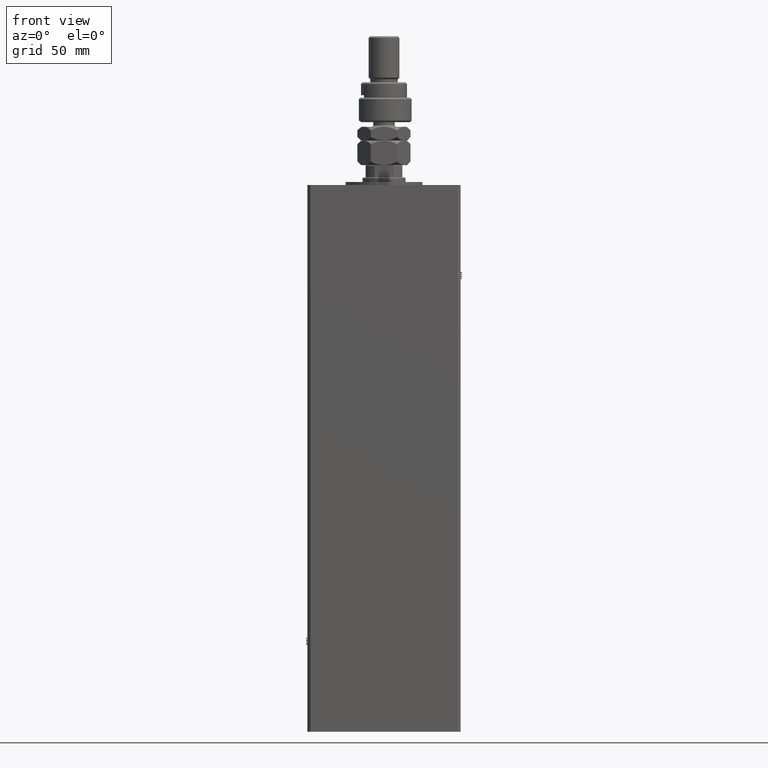
[diagram: clean part render]
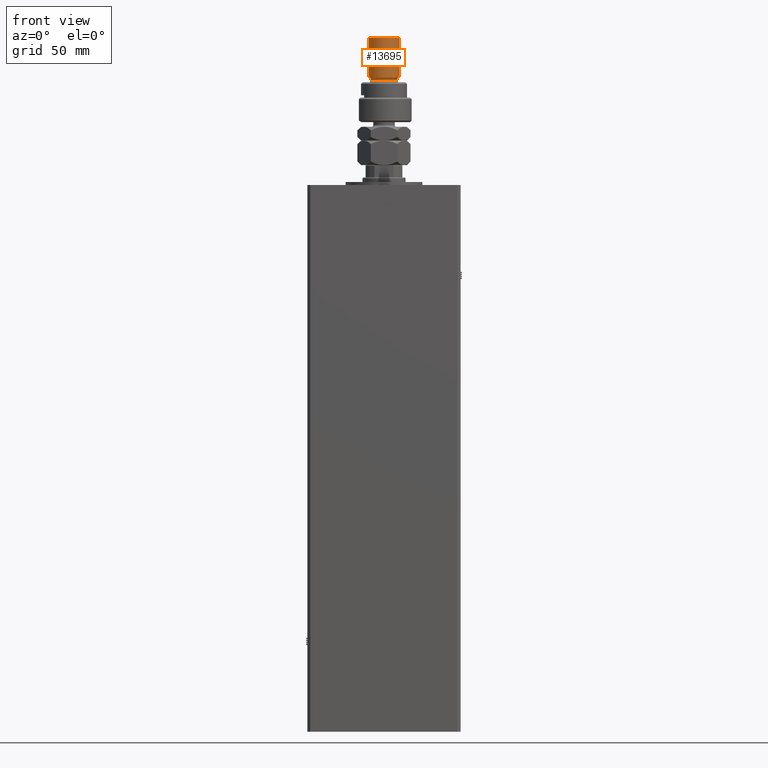
[diagram: same view with one face highlighted and labeled with its STEP entity id]
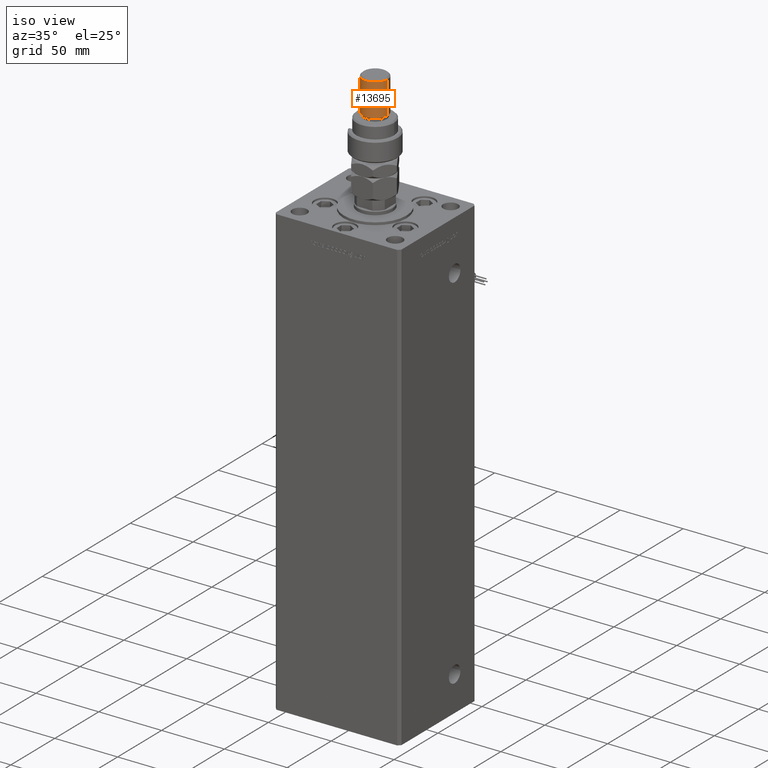
[diagram: same view with one face highlighted and labeled with its STEP entity id]
A machine part, front view. The second image highlights one B-rep face of the part: STEP entity #13695.
A second angle (iso view) of the same face is appended — the face is thin or edge-on in the first view.
In plain terms, the highlighted cylindrical surface (edge-blend (fillet) strip) has radius 10 mm, axis along (-0, -0, -1).
Its self-contained STEP definition (entity closure, byte-faithful):
#3103 = CARTESIAN_POINT ( 'NONE',  ( 0.000000000000000000, 0.000000000000000000, 54.99999999999998579 ) ) ;
#4920 = FACE_OUTER_BOUND ( 'NONE', #14383, .T. ) ;
#7478 = LINE ( 'NONE', #20712, #23730 ) ;
#8547 = AXIS2_PLACEMENT_3D ( 'NONE', #3103, #21614, #21024 ) ;
#9467 = AXIS2_PLACEMENT_3D ( 'NONE', #9889, #40702, #36901 ) ;
#9507 = EDGE_CURVE ( 'NONE', #38840, #21663, #38453, .T. ) ;
#9889 = CARTESIAN_POINT ( 'NONE',  ( 0.000000000000000000, 0.000000000000000000, 56.00000000000000711 ) ) ;
#10217 = LINE ( 'NONE', #23748, #21771 ) ;
#10335 = AXIS2_PLACEMENT_3D ( 'NONE', #14406, #19107, #27925 ) ;
#13373 = CARTESIAN_POINT ( 'NONE',  ( -10.00000000000000000, 0.000000000000000000, 29.00000000000000711 ) ) ;
#13695 = ADVANCED_FACE ( 'NONE', ( #4920 ), #41275, .T. ) ;
#14020 = EDGE_CURVE ( 'NONE', #52651, #34380, #48820, .T. ) ;
#14383 = EDGE_LOOP ( 'NONE', ( #55970, #26994, #57282, #52611 ) ) ;
#14406 = CARTESIAN_POINT ( 'NONE',  ( 0.000000000000000000, 0.000000000000000000, 29.00000000000000711 ) ) ;
#16946 = CARTESIAN_POINT ( 'NONE',  ( 10.00000000000000000, 1.224646799147353256E-15, 54.99999999999998579 ) ) ;
#18288 = EDGE_CURVE ( 'NONE', #34380, #38840, #7478, .T. ) ;
#19107 = DIRECTION ( 'NONE',  ( -0.000000000000000000, -0.000000000000000000, 1.000000000000000000 ) ) ;
#20712 = CARTESIAN_POINT ( 'NONE',  ( -10.00000000000000000, 0.000000000000000000, 56.00000000000000711 ) ) ;
#21024 = DIRECTION ( 'NONE',  ( 1.000000000000000000, 0.000000000000000000, 0.000000000000000000 ) ) ;
#21614 = DIRECTION ( 'NONE',  ( 0.000000000000000000, 0.000000000000000000, -1.000000000000000000 ) ) ;
#21663 = VERTEX_POINT ( 'NONE', #22301 ) ;
#21771 = VECTOR ( 'NONE', #41601, 1000.000000000000000 ) ;
#22301 = CARTESIAN_POINT ( 'NONE',  ( 10.00000000000000000, 1.224646799147353256E-15, 29.00000000000000711 ) ) ;
#23730 = VECTOR ( 'NONE', #38595, 1000.000000000000000 ) ;
#23748 = CARTESIAN_POINT ( 'NONE',  ( 10.00000000000000000, 1.224646799147353256E-15, 56.00000000000000711 ) ) ;
#26994 = ORIENTED_EDGE ( 'NONE', *, *, #14020, .T. ) ;
#27925 = DIRECTION ( 'NONE',  ( 1.000000000000000000, 0.000000000000000000, 0.000000000000000000 ) ) ;
#34380 = VERTEX_POINT ( 'NONE', #55484 ) ;
#36901 = DIRECTION ( 'NONE',  ( -1.000000000000000000, 0.000000000000000000, 0.000000000000000000 ) ) ;
#38453 = CIRCLE ( 'NONE', #10335, 10.00000000000000000 ) ;
#38595 = DIRECTION ( 'NONE',  ( -0.000000000000000000, -0.000000000000000000, -1.000000000000000000 ) ) ;
#38840 = VERTEX_POINT ( 'NONE', #13373 ) ;
#40702 = DIRECTION ( 'NONE',  ( -0.000000000000000000, -0.000000000000000000, -1.000000000000000000 ) ) ;
#41275 = CYLINDRICAL_SURFACE ( 'NONE', #9467, 10.00000000000000000 ) ;
#41601 = DIRECTION ( 'NONE',  ( -0.000000000000000000, -0.000000000000000000, -1.000000000000000000 ) ) ;
#43081 = EDGE_CURVE ( 'NONE', #52651, #21663, #10217, .T. ) ;
#48820 = CIRCLE ( 'NONE', #8547, 10.00000000000000000 ) ;
#52611 = ORIENTED_EDGE ( 'NONE', *, *, #9507, .T. ) ;
#52651 = VERTEX_POINT ( 'NONE', #16946 ) ;
#55484 = CARTESIAN_POINT ( 'NONE',  ( -10.00000000000000000, 0.000000000000000000, 54.99999999999998579 ) ) ;
#55970 = ORIENTED_EDGE ( 'NONE', *, *, #43081, .F. ) ;
#57282 = ORIENTED_EDGE ( 'NONE', *, *, #18288, .T. ) ;